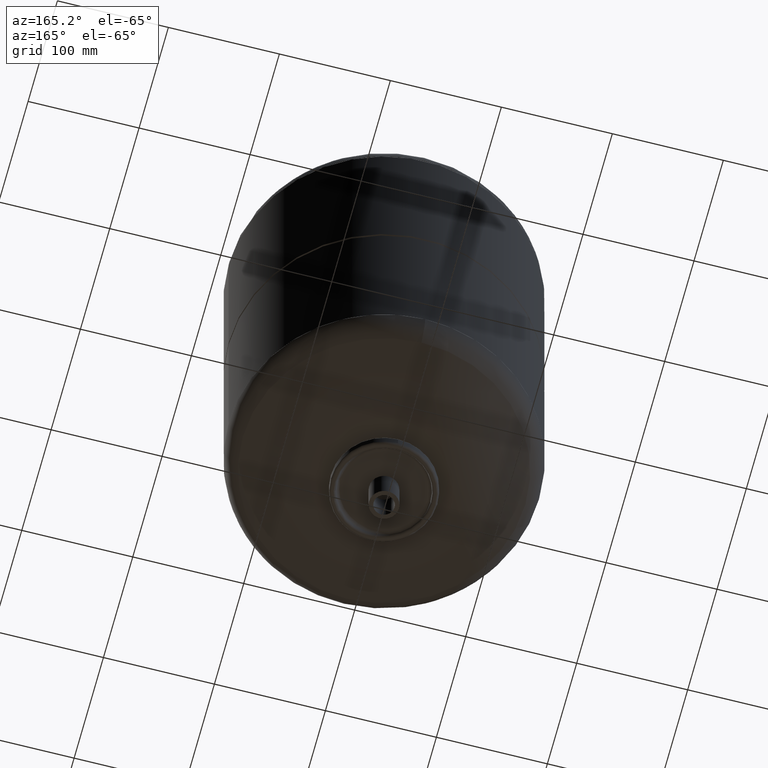
[diagram: clean part render]
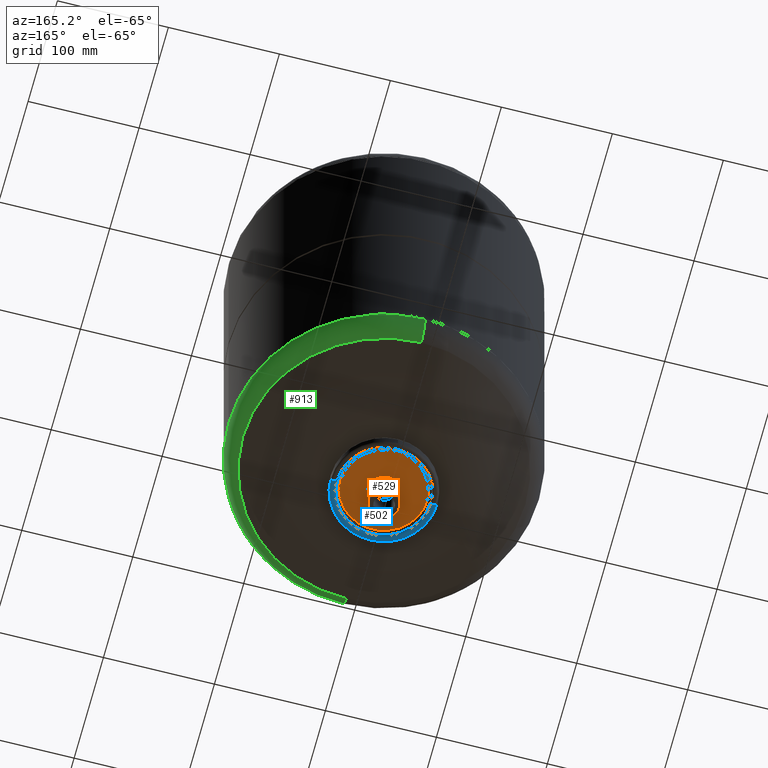
[diagram: same view with three faces highlighted in distinct colors, each labeled with its STEP entity id]
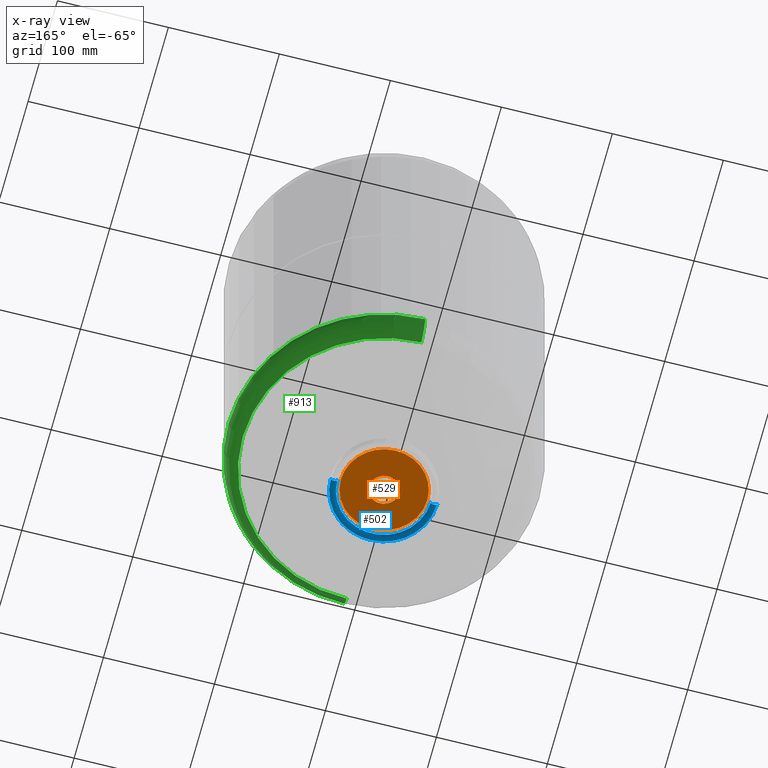
[diagram: x-ray of the same camera — body ghosted, the three highlighted faces saturated]
A machine part, auxiliary view with three faces highlighted in distinct colors.
The next image is the same camera in x-ray (body ghosted, the three faces saturated) — at least one of them is partly hidden behind the body in this view.
Their STEP definitions:

[orange] entity #529 — the highlighted planar face has unit normal (0, 0, -1).
#275=CARTESIAN_POINT('',(13.449999999999999,0.0,30.999999999999989));
#276=VERTEX_POINT('',#275);
#285=CARTESIAN_POINT('',(-13.449999999999999,1.647096E-015,30.999999999999993));
#286=VERTEX_POINT('',#285);
#287=CARTESIAN_POINT('',(0.0,0.0,30.999999999999993));
#288=DIRECTION('',(0.0,0.0,-1.0));
#289=DIRECTION('',(1.0,0.0,0.0));
#290=AXIS2_PLACEMENT_3D('',#287,#288,#289);
#291=CIRCLE('',#290,13.449999999999999);
#292=EDGE_CURVE('',#276,#286,#291,.T.);
#409=CARTESIAN_POINT('',(-39.000000000000007,3.136209E-016,31.0));
#410=VERTEX_POINT('',#409);
#436=CARTESIAN_POINT('',(39.000000000000007,-4.462344E-015,31.0));
#437=VERTEX_POINT('',#436);
#445=CARTESIAN_POINT('',(0.0,39.0,30.999999999999996));
#446=VERTEX_POINT('',#445);
#447=CARTESIAN_POINT('',(0.0,0.0,31.0));
#448=DIRECTION('',(0.0,0.0,-1.0));
#449=DIRECTION('',(0.0,1.0,0.0));
#450=AXIS2_PLACEMENT_3D('',#447,#448,#449);
#451=CIRCLE('',#450,39.000000000000007);
#452=EDGE_CURVE('',#446,#437,#451,.T.);
#454=CARTESIAN_POINT('',(0.0,0.0,31.0));
#455=DIRECTION('',(0.0,0.0,-1.0));
#456=DIRECTION('',(0.0,1.0,0.0));
#457=AXIS2_PLACEMENT_3D('',#454,#455,#456);
#458=CIRCLE('',#457,39.000000000000007);
#459=EDGE_CURVE('',#410,#446,#458,.T.);
#503=CARTESIAN_POINT('',(0.0,19.500000000000000,30.999999999999993));
#504=DIRECTION('',(0.0,0.0,-1.0));
#505=DIRECTION('',(-1.0,0.0,0.0));
#506=AXIS2_PLACEMENT_3D('',#503,#504,#505);
#507=PLANE('',#506);
#508=ORIENTED_EDGE('',*,*,#452,.T.);
#509=CARTESIAN_POINT('',(0.0,0.0,31.0));
#510=DIRECTION('',(0.0,0.0,-1.0));
#511=DIRECTION('',(0.0,1.0,0.0));
#512=AXIS2_PLACEMENT_3D('',#509,#510,#511);
#513=CIRCLE('',#512,39.000000000000007);
#514=EDGE_CURVE('',#437,#410,#513,.T.);
#515=ORIENTED_EDGE('',*,*,#514,.T.);
#516=ORIENTED_EDGE('',*,*,#459,.T.);
#517=EDGE_LOOP('',(#508,#515,#516));
#518=FACE_OUTER_BOUND('',#517,.T.);
#519=CARTESIAN_POINT('',(0.0,0.0,30.999999999999993));
#520=DIRECTION('',(0.0,0.0,-1.0));
#521=DIRECTION('',(1.0,0.0,0.0));
#522=AXIS2_PLACEMENT_3D('',#519,#520,#521);
#523=CIRCLE('',#522,13.449999999999999);
#524=EDGE_CURVE('',#286,#276,#523,.T.);
#525=ORIENTED_EDGE('',*,*,#524,.F.);
#526=ORIENTED_EDGE('',*,*,#292,.F.);
#527=EDGE_LOOP('',(#525,#526));
#528=FACE_BOUND('',#527,.T.);
#529=ADVANCED_FACE('',(#518,#528),#507,.T.);

[blue] entity #502 — the highlighted toroidal blend (fillet) surface has major radius 45 mm and minor (blend) radius 3 mm.
#140=CARTESIAN_POINT('',(-48.000000000000007,0.0,28.0));
#141=VERTEX_POINT('',#140);
#149=CARTESIAN_POINT('',(-5.878110E-015,-48.000000000000007,28.0));
#150=VERTEX_POINT('',#149);
#151=CARTESIAN_POINT('',(0.0,0.0,28.0));
#152=DIRECTION('',(0.0,0.0,-1.0));
#153=DIRECTION('',(0.0,1.0,0.0));
#154=AXIS2_PLACEMENT_3D('',#151,#152,#153);
#155=CIRCLE('',#154,48.000000000000007);
#156=EDGE_CURVE('',#150,#141,#155,.T.);
#407=CARTESIAN_POINT('',(-42.000000000000014,0.0,28.0));
#408=VERTEX_POINT('',#407);
#427=CARTESIAN_POINT('',(42.000000000000014,-5.143347E-015,28.0));
#428=VERTEX_POINT('',#427);
#464=CARTESIAN_POINT('',(0.0,0.0,28.0));
#465=DIRECTION('',(0.0,-1.045403E-016,-1.0));
#466=DIRECTION('',(-1.0,0.0,0.0));
#467=AXIS2_PLACEMENT_3D('',#464,#465,#466);
#468=TOROIDAL_SURFACE('',#467,45.000000000000007,3.000000000000000);
#469=CARTESIAN_POINT('',(-45.000000000000007,0.0,28.0));
#470=DIRECTION('',(0.0,1.0,0.0));
#471=DIRECTION('',(-1.0,0.0,0.0));
#472=AXIS2_PLACEMENT_3D('',#469,#470,#471);
#473=CIRCLE('',#472,3.000000000000000);
#474=EDGE_CURVE('',#408,#141,#473,.T.);
#475=ORIENTED_EDGE('',*,*,#474,.F.);
#476=CARTESIAN_POINT('',(0.0,0.0,28.0));
#477=DIRECTION('',(0.0,0.0,-1.0));
#478=DIRECTION('',(0.0,1.0,0.0));
#479=AXIS2_PLACEMENT_3D('',#476,#477,#478);
#480=CIRCLE('',#479,42.000000000000014);
#481=EDGE_CURVE('',#428,#408,#480,.T.);
#482=ORIENTED_EDGE('',*,*,#481,.F.);
#483=CARTESIAN_POINT('',(48.000000000000007,-5.878110E-015,28.0));
#484=VERTEX_POINT('',#483);
#485=CARTESIAN_POINT('',(45.000000000000007,-5.510729E-015,28.0));
#486=DIRECTION('',(0.0,-1.0,0.0));
#487=DIRECTION('',(1.0,0.0,0.0));
#488=AXIS2_PLACEMENT_3D('',#485,#486,#487);
#489=CIRCLE('',#488,3.000000000000000);
#490=EDGE_CURVE('',#428,#484,#489,.T.);
#491=ORIENTED_EDGE('',*,*,#490,.T.);
#492=CARTESIAN_POINT('',(0.0,0.0,28.0));
#493=DIRECTION('',(0.0,0.0,-1.0));
#494=DIRECTION('',(0.0,1.0,0.0));
#495=AXIS2_PLACEMENT_3D('',#492,#493,#494);
#496=CIRCLE('',#495,48.000000000000007);
#497=EDGE_CURVE('',#484,#150,#496,.T.);
#498=ORIENTED_EDGE('',*,*,#497,.T.);
#499=ORIENTED_EDGE('',*,*,#156,.T.);
#500=EDGE_LOOP('',(#475,#482,#491,#498,#499));
#501=FACE_OUTER_BOUND('',#500,.T.);
#502=ADVANCED_FACE('',(#501),#468,.T.);

[green] entity #913 — the highlighted toroidal blend (fillet) surface has major radius 115 mm and minor (blend) radius 25 mm.
#799=CARTESIAN_POINT('',(140.0,1.726252E-014,92.357457576154573));
#800=VERTEX_POINT('',#799);
#807=CARTESIAN_POINT('',(-9.759320E-015,140.0,92.357457576154616));
#808=VERTEX_POINT('',#807);
#809=CARTESIAN_POINT('',(-1.190815E-016,1.180331E-016,92.357457576154601));
#810=DIRECTION('',(0.0,0.0,1.0));
#811=DIRECTION('',(-1.0,0.0,0.0));
#812=AXIS2_PLACEMENT_3D('',#809,#810,#811);
#813=CIRCLE('',#812,140.0);
#814=EDGE_CURVE('',#800,#808,#813,.T.);
#831=CARTESIAN_POINT('',(7.385169E-015,-140.0,92.357457576154573));
#832=VERTEX_POINT('',#831);
#833=CARTESIAN_POINT('',(3.355614E-015,-127.339055793991430,70.614695513510185));
#834=VERTEX_POINT('',#833);
#835=CARTESIAN_POINT('',(7.385169E-015,-115.000000000000010,92.357457576154587));
#836=DIRECTION('',(1.0,0.0,0.0));
#837=DIRECTION('',(0.0,-1.0,0.0));
#838=AXIS2_PLACEMENT_3D('',#835,#836,#837);
#839=CIRCLE('',#838,25.0);
#840=EDGE_CURVE('',#832,#834,#839,.T.);
#850=CARTESIAN_POINT('',(-1.223841E-014,127.339055793991430,70.614695513510242));
#851=VERTEX_POINT('',#850);
#852=CARTESIAN_POINT('',(-6.697804E-015,115.000000000000010,92.357457576154644));
#853=DIRECTION('',(-1.0,0.0,0.0));
#854=DIRECTION('',(0.0,1.0,0.0));
#855=AXIS2_PLACEMENT_3D('',#852,#853,#854);
#856=CIRCLE('',#855,25.0);
#857=EDGE_CURVE('',#808,#851,#856,.T.);
#885=CARTESIAN_POINT('',(-4.148636E-015,4.112114E-015,70.614695513510213));
#886=DIRECTION('',(0.0,0.0,1.0));
#887=DIRECTION('',(-1.0,0.0,0.0));
#888=AXIS2_PLACEMENT_3D('',#885,#886,#887);
#889=CIRCLE('',#888,127.339055793991430);
#890=EDGE_CURVE('',#834,#851,#889,.T.);
#895=CARTESIAN_POINT('',(7.385169E-015,1.180331E-016,92.357457576154616));
#896=DIRECTION('',(1.853286E-016,-1.836970E-016,1.0));
#897=DIRECTION('',(0.0,-1.0,0.0));
#898=AXIS2_PLACEMENT_3D('',#895,#896,#897);
#899=TOROIDAL_SURFACE('',#898,115.000000000000010,25.0);
#900=ORIENTED_EDGE('',*,*,#840,.T.);
#901=ORIENTED_EDGE('',*,*,#890,.T.);
#902=ORIENTED_EDGE('',*,*,#857,.F.);
#903=ORIENTED_EDGE('',*,*,#814,.F.);
#904=CARTESIAN_POINT('',(-1.190815E-016,1.180331E-016,92.357457576154601));
#905=DIRECTION('',(0.0,0.0,1.0));
#906=DIRECTION('',(-1.0,0.0,0.0));
#907=AXIS2_PLACEMENT_3D('',#904,#905,#906);
#908=CIRCLE('',#907,140.0);
#909=EDGE_CURVE('',#832,#800,#908,.T.);
#910=ORIENTED_EDGE('',*,*,#909,.F.);
#911=EDGE_LOOP('',(#900,#901,#902,#903,#910));
#912=FACE_OUTER_BOUND('',#911,.T.);
#913=ADVANCED_FACE('',(#912),#899,.T.);